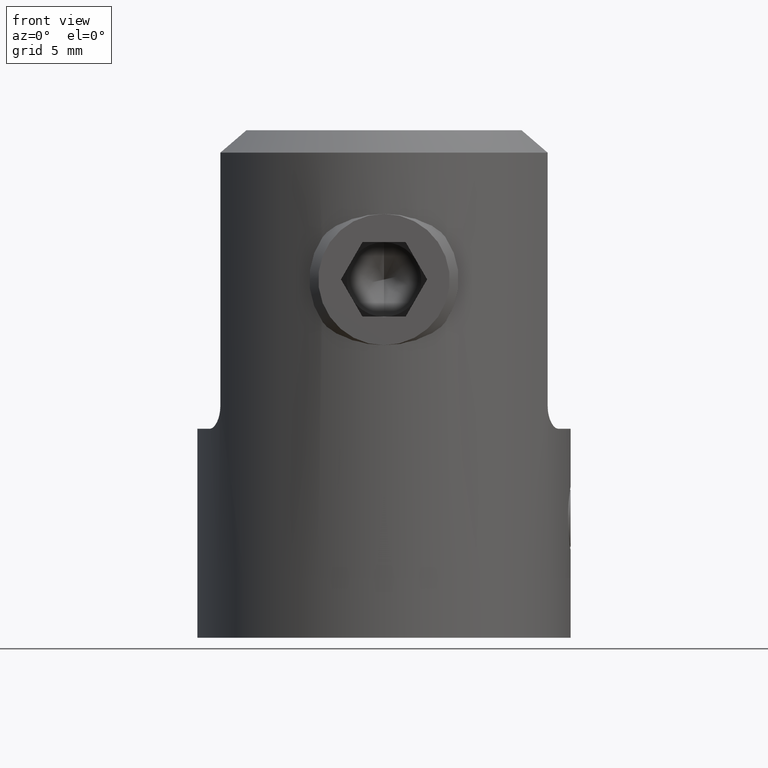
[diagram: clean part render]
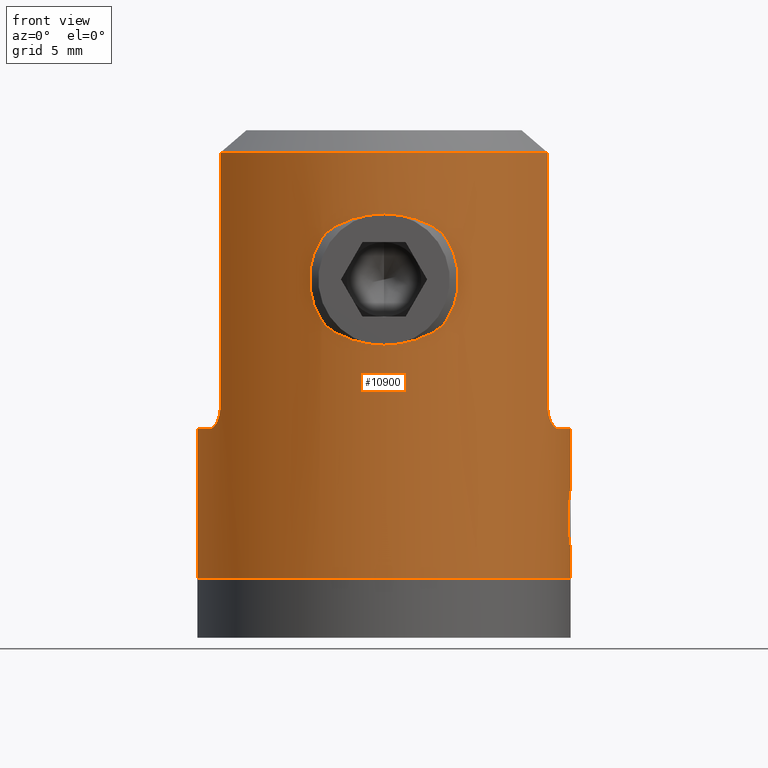
[diagram: same view with one face highlighted and labeled with its STEP entity id]
A machine part, front view. The second image highlights one B-rep face of the part: STEP entity #10900.
In plain terms, the highlighted cylindrical surface (partial cylindrical patch) has radius 12.5 mm, axis along (-0, -0, -1).
Its self-contained STEP definition (entity closure, byte-faithful):
#116 = VECTOR ( 'NONE', #6065, 1000.000000000000000 ) ;
#203 = CARTESIAN_POINT ( 'NONE',  ( 5.207285104027517076E-16, -12.50000000000000000, 9.249999999999998224 ) ) ;
#264 = CARTESIAN_POINT ( 'NONE',  ( -11.23973335227942272, -5.470324858734009865, -4.647975933231345280 ) ) ;
#312 = CARTESIAN_POINT ( 'NONE',  ( 11.01148464564136731, -5.916018815746308057, -4.005039983900222644 ) ) ;
#544 = CARTESIAN_POINT ( 'NONE',  ( -4.031369261545541427, -11.83262075313582429, 6.374420639418072021 ) ) ;
#568 = CARTESIAN_POINT ( 'NONE',  ( -10.96585609973065623, -6.000000000000000000, 13.50000000000000711 ) ) ;
#652 = CARTESIAN_POINT ( 'NONE',  ( -3.816095743233451021, -11.90379205501131565, 6.891661570014089300 ) ) ;
#723 = DIRECTION ( 'NONE',  ( -0.000000000000000000, -0.000000000000000000, -1.000000000000000000 ) ) ;
#753 = CARTESIAN_POINT ( 'NONE',  ( -3.199617096894397328, -12.08524053504126172, 7.810939405825020110 ) ) ;
#889 = CARTESIAN_POINT ( 'NONE',  ( -1.887422795815530419E-16, -12.50000000000000000, 0.7500000000000042188 ) ) ;
#1137 = EDGE_CURVE ( 'NONE', #13182, #12910, #3888, .T. ) ;
#1251 = VERTEX_POINT ( 'NONE', #8369 ) ;
#1287 = CARTESIAN_POINT ( 'NONE',  ( 12.48225234873648937, -0.6779383900031878962, -12.99232023470801067 ) ) ;
#1401 = CARTESIAN_POINT ( 'NONE',  ( 12.35680486868406014, -1.887385030941209463, -10.06900153632270722 ) ) ;
#1509 = CARTESIAN_POINT ( 'NONE',  ( 12.43473698676050887, -1.280796030087372639, -12.66984366962716813 ) ) ;
#1675 = EDGE_LOOP ( 'NONE', ( #22645, #3199 ) ) ;
#1718 = EDGE_CURVE ( 'NONE', #9214, #16808, #8481, .T. ) ;
#1956 = CARTESIAN_POINT ( 'NONE',  ( 2.593793018188462085, -12.23016238823205626, 1.621978904182383552 ) ) ;
#1959 = AXIS2_PLACEMENT_3D ( 'NONE', #19739, #29859, #27114 ) ;
#2063 = CARTESIAN_POINT ( 'NONE',  ( 4.221710727585462841, -11.76565035374856016, 5.563101670676046773 ) ) ;
#2074 = EDGE_CURVE ( 'NONE', #9450, #13132, #27597, .T. ) ;
#2148 = VERTEX_POINT ( 'NONE', #6154 ) ;
#2167 = DIRECTION ( 'NONE',  ( -1.000000000000000000, 0.000000000000000000, 0.000000000000000000 ) ) ;
#2193 = EDGE_CURVE ( 'NONE', #13132, #9450, #25095, .T. ) ;
#2514 = VERTEX_POINT ( 'NONE', #568 ) ;
#2919 = CARTESIAN_POINT ( 'NONE',  ( 10.99481255590329098, -5.946820213528531518, -3.908856176056842546 ) ) ;
#3052 = CARTESIAN_POINT ( 'NONE',  ( -4.222397225305727808, -11.76540531919759047, 4.441068498242849216 ) ) ;
#3199 = ORIENTED_EDGE ( 'NONE', *, *, #2193, .T. ) ;
#3214 = LINE ( 'NONE', #22276, #8788 ) ;
#3217 = ORIENTED_EDGE ( 'NONE', *, *, #17332, .T. ) ;
#3267 = CARTESIAN_POINT ( 'NONE',  ( -4.221973745491570895, -11.76555630917166617, 5.561451184411105864 ) ) ;
#3432 = ORIENTED_EDGE ( 'NONE', *, *, #17656, .T. ) ;
#3597 = ORIENTED_EDGE ( 'NONE', *, *, #21679, .T. ) ;
#3680 = CARTESIAN_POINT ( 'NONE',  ( 12.49766874747620449, -0.2765420468446734281, -8.913752199355624128 ) ) ;
#3691 = CARTESIAN_POINT ( 'NONE',  ( 0.5597348770223994352, -12.49051703213723918, 9.222348669334014204 ) ) ;
#3828 = CARTESIAN_POINT ( 'NONE',  ( -12.50000000000000000, 0.000000000000000000, 15.00000000000000000 ) ) ;
#3888 = LINE ( 'NONE', #27723, #25567 ) ;
#3897 = CARTESIAN_POINT ( 'NONE',  ( 12.39978901785039511, -1.582696428115959009, -9.612848321380432992 ) ) ;
#4000 = CARTESIAN_POINT ( 'NONE',  ( 12.42318353256700547, -1.387157736859883306, -9.417308881639295137 ) ) ;
#4684 = CARTESIAN_POINT ( 'NONE',  ( 3.375247261267659837, -12.03676708846563059, 2.402398663580476157 ) ) ;
#4730 = VERTEX_POINT ( 'NONE', #14885 ) ;
#4793 = CARTESIAN_POINT ( 'NONE',  ( 0.2830131041339414288, -12.50000000000000000, 0.7500000000000038858 ) ) ;
#5125 = CARTESIAN_POINT ( 'NONE',  ( 11.58701421025937783, -4.694078904483859560, -4.999999999999999112 ) ) ;
#5380 = CARTESIAN_POINT ( 'NONE',  ( -1.378330330126585901, -12.42647857813923018, 0.9700878437640333418 ) ) ;
#5394 = CARTESIAN_POINT ( 'NONE',  ( 12.50000000000000000, 1.530808596915920262E-15, -8.900000000000002132 ) ) ;
#5525 = CARTESIAN_POINT ( 'NONE',  ( -10.97173756636302144, -5.989285090790706256, -3.706020171332470969 ) ) ;
#5591 = CARTESIAN_POINT ( 'NONE',  ( -0.5605364982178012712, -12.49047348086351228, 9.222219400599279027 ) ) ;
#5818 = CARTESIAN_POINT ( 'NONE',  ( -2.136877713584982796, -12.31821531856452445, 8.684108825520505448 ) ) ;
#5821 = B_SPLINE_CURVE_WITH_KNOTS ( 'NONE', 3,
 ( #15483, #5125, #20222, #18009, #10314, #15058, #20551, #10210, #28120, #312, #2919, #12974, #15377, #12753 ),
 .UNSPECIFIED., .F., .F.,
 ( 4, 2, 2, 2, 2, 2, 4 ),
 ( 0.000000000000000000, 0.0006151161243087470767, 0.001230232248617494153, 0.001537790310771869210, 0.001845348372926244483, 0.002152906435080619539, 0.002460464497234994812 ),
 .UNSPECIFIED. ) ;
#6026 = CARTESIAN_POINT ( 'NONE',  ( 10.96585609973065800, -5.999999999999998224, -3.499999999999996003 ) ) ;
#6065 = DIRECTION ( 'NONE',  ( -0.000000000000000000, -0.000000000000000000, -1.000000000000000000 ) ) ;
#6154 = CARTESIAN_POINT ( 'NONE',  ( 12.50000000000000000, 1.530808498934191521E-15, -15.00000000000000000 ) ) ;
#6254 = CARTESIAN_POINT ( 'NONE',  ( 12.48229535687992708, -0.6771302859603559599, -9.007412991424079252 ) ) ;
#6301 = VECTOR ( 'NONE', #19880, 1000.000000000000000 ) ;
#6560 = EDGE_LOOP ( 'NONE', ( #14883, #27230, #3217, #24209, #11901, #21255, #15057, #26531, #3597, #3432, #10225, #27732 ) ) ;
#6573 = CARTESIAN_POINT ( 'NONE',  ( 12.32232857426643413, -2.100052025693301072, -10.86355718150324279 ) ) ;
#6933 = CARTESIAN_POINT ( 'NONE',  ( 1.106723622982606958, -12.45391315575747271, 0.8872027703801919074 ) ) ;
#7006 = FACE_BOUND ( 'NONE', #1675, .T. ) ;
#7033 = CIRCLE ( 'NONE', #1959, 12.50000000000000000 ) ;
#7055 = EDGE_CURVE ( 'NONE', #16808, #24830, #24542, .T. ) ;
#7142 = CARTESIAN_POINT ( 'NONE',  ( 1.889779339561150184, -12.35903129587626736, 8.816858704791874501 ) ) ;
#7369 = CARTESIAN_POINT ( 'NONE',  ( 3.398411690951088193, -12.03595731224373466, 7.611797769971548888 ) ) ;
#7757 = CARTESIAN_POINT ( 'NONE',  ( -10.96585609973065623, -6.000000000000000000, -3.499999999999996003 ) ) ;
#7933 = CARTESIAN_POINT ( 'NONE',  ( -3.200971035677666610, -12.08486193691608612, 2.190743650006375720 ) ) ;
#8211 = CYLINDRICAL_SURFACE ( 'NONE', #20521, 12.50000000000000000 ) ;
#8255 = CARTESIAN_POINT ( 'NONE',  ( -0.2830837487765228144, -12.50000000000000355, 0.7500000000000046629 ) ) ;
#8363 = CARTESIAN_POINT ( 'NONE',  ( -2.596074283337399979, -12.22968001677591232, 8.376285313253081455 ) ) ;
#8369 = CARTESIAN_POINT ( 'NONE',  ( 12.50000000000000000, 1.530808498934191521E-15, -4.999999999999997335 ) ) ;
#8481 = B_SPLINE_CURVE_WITH_KNOTS ( 'NONE', 3,
 ( #7757, #15233, #5525, #18164, #30409, #22916, #15334, #264, #10378, #28844, #30858, #31184, #18491, #25989 ),
 .UNSPECIFIED., .F., .F.,
 ( 4, 2, 2, 2, 2, 2, 4 ),
 ( 0.000000000000000000, 0.0003075094413942247996, 0.0006150188827884495993, 0.001230037765576901367, 0.001537547206971126438, 0.001845056648365351291, 0.002460075531153798831 ),
 .UNSPECIFIED. ) ;
#8788 = VECTOR ( 'NONE', #9425, 1000.000000000000000 ) ;
#9020 = CARTESIAN_POINT ( 'NONE',  ( 12.32468933921310317, -2.086330489974699720, -10.72412159197896386 ) ) ;
#9214 = VERTEX_POINT ( 'NONE', #14136 ) ;
#9345 = DIRECTION ( 'NONE',  ( 1.000000000000000000, 0.000000000000000000, 0.000000000000000000 ) ) ;
#9425 = DIRECTION ( 'NONE',  ( -0.000000000000000000, -0.000000000000000000, -1.000000000000000000 ) ) ;
#9450 = VERTEX_POINT ( 'NONE', #889 ) ;
#9550 = CARTESIAN_POINT ( 'NONE',  ( 12.50000000000000000, 1.530808498934191521E-15, 15.00000000000000000 ) ) ;
#10165 = CIRCLE ( 'NONE', #17842, 12.50000000000000000 ) ;
#10210 = CARTESIAN_POINT ( 'NONE',  ( 11.08050474110093297, -5.785881309646044635, -4.278563079836198213 ) ) ;
#10225 = ORIENTED_EDGE ( 'NONE', *, *, #31388, .F. ) ;
#10314 = CARTESIAN_POINT ( 'NONE',  ( 11.27476220471208990, -5.399469201287617537, -4.716102953908867690 ) ) ;
#10378 = CARTESIAN_POINT ( 'NONE',  ( -11.27682585951398231, -5.393616224303183770, -4.708558559768877494 ) ) ;
#10554 = CARTESIAN_POINT ( 'NONE',  ( -2.808494909976503973, -12.18207472876354380, 8.201762991009006853 ) ) ;
#10634 = EDGE_CURVE ( 'NONE', #12910, #2514, #7033, .T. ) ;
#10736 = CARTESIAN_POINT ( 'NONE',  ( 0.000000000000000000, 0.000000000000000000, -4.999999999999997335 ) ) ;
#10775 = CARTESIAN_POINT ( 'NONE',  ( -1.887422795815530419E-16, -12.50000000000000000, 0.7500000000000042188 ) ) ;
#10900 = ADVANCED_FACE ( 'NONE', ( #18403, #7006 ), #8211, .T. ) ;
#11206 = CARTESIAN_POINT ( 'NONE',  ( 12.48878923632492111, -0.5462078688293388051, -8.967621503411464801 ) ) ;
#11217 = CARTESIAN_POINT ( 'NONE',  ( 5.207285104027517076E-16, -12.50000000000000000, 9.249999999999998224 ) ) ;
#11422 = CARTESIAN_POINT ( 'NONE',  ( 12.48886249823464745, -0.5444173614143064110, -13.03282630261578667 ) ) ;
#11528 = CARTESIAN_POINT ( 'NONE',  ( 12.45599735624381665, -1.054112223713820740, -9.178589918335488207 ) ) ;
#11882 = CARTESIAN_POINT ( 'NONE',  ( 4.112665512655786060, -11.80421006736385969, 3.892299831934840526 ) ) ;
#11901 = ORIENTED_EDGE ( 'NONE', *, *, #10634, .T. ) ;
#12206 = CARTESIAN_POINT ( 'NONE',  ( 2.810810378641917850, -12.18152699822223717, 1.800356513243473788 ) ) ;
#12735 = DIRECTION ( 'NONE',  ( -0.000000000000000000, -0.000000000000000000, -1.000000000000000000 ) ) ;
#12753 = CARTESIAN_POINT ( 'NONE',  ( 10.96585609973065800, -5.999999999999998224, -3.499999999999996003 ) ) ;
#12910 = VERTEX_POINT ( 'NONE', #26724 ) ;
#12974 = CARTESIAN_POINT ( 'NONE',  ( 10.97193991948220138, -5.988915443947516515, -3.708765188068190000 ) ) ;
#13132 = VERTEX_POINT ( 'NONE', #203 ) ;
#13182 = VERTEX_POINT ( 'NONE', #6026 ) ;
#13326 = CARTESIAN_POINT ( 'NONE',  ( -4.112439659885906096, -11.80428908054483017, 3.891450138368368172 ) ) ;
#13750 = CARTESIAN_POINT ( 'NONE',  ( 12.33211929933789719, -2.044525624529536678, -11.55200599510587445 ) ) ;
#13890 = DIRECTION ( 'NONE',  ( -0.000000000000000000, -0.000000000000000000, 1.000000000000000000 ) ) ;
#14078 = CARTESIAN_POINT ( 'NONE',  ( 12.50000000000000178, -0.1390172217368306484, -13.10000000000000142 ) ) ;
#14136 = CARTESIAN_POINT ( 'NONE',  ( -10.96585609973065623, -6.000000000000000000, -3.499999999999996003 ) ) ;
#14175 = AXIS2_PLACEMENT_3D ( 'NONE', #10736, #723, #15460 ) ;
#14420 = CARTESIAN_POINT ( 'NONE',  ( 3.684943520733715783, -11.94559530813206472, 2.864345995563434499 ) ) ;
#14626 = CARTESIAN_POINT ( 'NONE',  ( 4.029947479452941295, -11.83309392025664053, 3.622025157733308465 ) ) ;
#14847 = CARTESIAN_POINT ( 'NONE',  ( 2.596988921468601053, -12.22948091441702800, 8.375561587881106718 ) ) ;
#14883 = ORIENTED_EDGE ( 'NONE', *, *, #22263, .F. ) ;
#14885 = CARTESIAN_POINT ( 'NONE',  ( -12.50000000000000000, 0.000000000000000000, -15.00000000000000000 ) ) ;
#15057 = ORIENTED_EDGE ( 'NONE', *, *, #1718, .T. ) ;
#15058 = CARTESIAN_POINT ( 'NONE',  ( 11.17064239995578490, -5.610069605577518992, -4.513525175028263448 ) ) ;
#15233 = CARTESIAN_POINT ( 'NONE',  ( -10.96585609973065623, -6.000000000000000888, -3.604089402007262688 ) ) ;
#15334 = CARTESIAN_POINT ( 'NONE',  ( -11.13622824818951429, -5.679670762106630022, -4.446516345370229217 ) ) ;
#15377 = CARTESIAN_POINT ( 'NONE',  ( 10.96585609973065445, -6.000000000000000000, -3.604328670593471173 ) ) ;
#15460 = DIRECTION ( 'NONE',  ( 1.000000000000000000, 3.552713678800500929E-15, 0.000000000000000000 ) ) ;
#15483 = CARTESIAN_POINT ( 'NONE',  ( 11.66190378969060149, -4.500000000000000888, -4.999999999999997335 ) ) ;
#15571 = CIRCLE ( 'NONE', #19874, 12.50000000000000000 ) ;
#15615 = CARTESIAN_POINT ( 'NONE',  ( -3.684277890535777811, -11.94578133614016124, 7.136497493859844887 ) ) ;
#15826 = CARTESIAN_POINT ( 'NONE',  ( -4.029702645458757893, -11.83317490101704550, 3.621435273870646121 ) ) ;
#16250 = CARTESIAN_POINT ( 'NONE',  ( 12.50000000000000000, -0.1371844661457296832, -8.900000000000002132 ) ) ;
#16467 = CARTESIAN_POINT ( 'NONE',  ( 12.46584558724483394, -0.9321576868460976772, -12.88680216904710285 ) ) ;
#16683 = CARTESIAN_POINT ( 'NONE',  ( 12.38820982123449888, -1.669773426702777730, -9.719165335797715244 ) ) ;
#16797 = CARTESIAN_POINT ( 'NONE',  ( 0.000000000000000000, 0.000000000000000000, -4.999999999999997335 ) ) ;
#16808 = VERTEX_POINT ( 'NONE', #19050 ) ;
#17332 = EDGE_CURVE ( 'NONE', #20619, #13182, #5821, .T. ) ;
#17354 = CARTESIAN_POINT ( 'NONE',  ( 1.891760164608733419, -12.35874089043786839, 1.184072771329882645 ) ) ;
#17656 = EDGE_CURVE ( 'NONE', #4730, #2148, #15571, .T. ) ;
#17842 = AXIS2_PLACEMENT_3D ( 'NONE', #16797, #19426, #9345 ) ;
#18009 = CARTESIAN_POINT ( 'NONE',  ( 11.35153951942210426, -5.237407659473080734, -4.820238489391681647 ) ) ;
#18124 = CARTESIAN_POINT ( 'NONE',  ( -2.812211592023617257, -12.18119737822430082, 1.801624979319209841 ) ) ;
#18164 = CARTESIAN_POINT ( 'NONE',  ( -10.99435860339805515, -5.947658364751337245, -3.905832048528476097 ) ) ;
#18348 = CARTESIAN_POINT ( 'NONE',  ( -1.888204378323606880, -12.35925933702424118, 8.817588875153733241 ) ) ;
#18403 = FACE_OUTER_BOUND ( 'NONE', #6560, .T. ) ;
#18491 = CARTESIAN_POINT ( 'NONE',  ( -11.58712850848544562, -4.693782696724811743, -4.999999999999998224 ) ) ;
#18787 = CARTESIAN_POINT ( 'NONE',  ( 0.2787818760532497220, -12.50000000000000000, 9.250000000000000000 ) ) ;
#18989 = CARTESIAN_POINT ( 'NONE',  ( 12.36678065982763108, -1.821708534087456144, -9.946406743388207516 ) ) ;
#19050 = CARTESIAN_POINT ( 'NONE',  ( -11.66190378969060149, -4.500000000000000888, -4.999999999999997335 ) ) ;
#19243 = CARTESIAN_POINT ( 'NONE',  ( -10.96585609973065623, -6.000000000000000000, -42.73084924772409465 ) ) ;
#19259 = LINE ( 'NONE', #9550, #6301 ) ;
#19426 = DIRECTION ( 'NONE',  ( -0.000000000000000000, -0.000000000000000000, -1.000000000000000000 ) ) ;
#19739 = CARTESIAN_POINT ( 'NONE',  ( 0.000000000000000000, 0.000000000000000000, 13.50000000000000711 ) ) ;
#19874 = AXIS2_PLACEMENT_3D ( 'NONE', #22396, #24824, #20184 ) ;
#19880 = DIRECTION ( 'NONE',  ( -0.000000000000000000, -0.000000000000000000, -1.000000000000000000 ) ) ;
#20184 = DIRECTION ( 'NONE',  ( 1.000000000000000000, 0.000000000000000000, 0.000000000000000000 ) ) ;
#20222 = CARTESIAN_POINT ( 'NONE',  ( 11.50910958810004381, -4.881422430154224834, -4.963323838012638767 ) ) ;
#20460 = CARTESIAN_POINT ( 'NONE',  ( -0.5610328502745796087, -12.49040236568682971, 0.7779974687900530483 ) ) ;
#20521 = AXIS2_PLACEMENT_3D ( 'NONE', #27569, #12735, #2167 ) ;
#20548 = CARTESIAN_POINT ( 'NONE',  ( 11.66190378969060149, -4.500000000000000888, -4.999999999999997335 ) ) ;
#20551 = CARTESIAN_POINT ( 'NONE',  ( 11.13854122013244741, -5.673350626770930383, -4.439627329550028811 ) ) ;
#20619 = VERTEX_POINT ( 'NONE', #20548 ) ;
#20796 = CARTESIAN_POINT ( 'NONE',  ( -1.111130932166489726, -12.45357446653657441, 9.111778919666528864 ) ) ;
#20903 = CARTESIAN_POINT ( 'NONE',  ( -3.817127236152718428, -11.90344787496035472, 3.110956914740556023 ) ) ;
#21255 = ORIENTED_EDGE ( 'NONE', *, *, #32347, .F. ) ;
#21328 = CARTESIAN_POINT ( 'NONE',  ( 12.45612162279729773, -1.052690134217554307, -12.82226777203640289 ) ) ;
#21337 = CARTESIAN_POINT ( 'NONE',  ( 1.111017029286507363, -12.45359225377565870, 9.111833238181887396 ) ) ;
#21451 = CARTESIAN_POINT ( 'NONE',  ( 1.376834995125562733, -12.42663453718981970, 9.030384810508207849 ) ) ;
#21550 = CARTESIAN_POINT ( 'NONE',  ( 12.43467607152728149, -1.281348397245134496, -9.330618812059585210 ) ) ;
#21679 = EDGE_CURVE ( 'NONE', #24830, #4730, #30043, .T. ) ;
#22104 = CARTESIAN_POINT ( 'NONE',  ( -1.887422795815530419E-16, -12.50000000000000000, 0.7500000000000042188 ) ) ;
#22213 = CARTESIAN_POINT ( 'NONE',  ( 2.809736531028914186, -12.18179987674392528, 8.200769911959799430 ) ) ;
#22263 = EDGE_CURVE ( 'NONE', #1251, #27669, #3214, .T. ) ;
#22276 = CARTESIAN_POINT ( 'NONE',  ( 12.50000000000000000, 1.530808498934191521E-15, 15.00000000000000000 ) ) ;
#22396 = CARTESIAN_POINT ( 'NONE',  ( 0.000000000000000000, 0.000000000000000000, -15.00000000000000000 ) ) ;
#22424 = CARTESIAN_POINT ( 'NONE',  ( 4.112253069215840107, -11.80435277382028225, 6.108737865166160574 ) ) ;
#22645 = ORIENTED_EDGE ( 'NONE', *, *, #2074, .T. ) ;
#22916 = CARTESIAN_POINT ( 'NONE',  ( -11.07533964970953200, -5.796125840938207929, -4.281360748136418870 ) ) ;
#22984 = CARTESIAN_POINT ( 'NONE',  ( -4.112389195474695391, -11.80430568381098233, 6.108397421974512298 ) ) ;
#23424 = CARTESIAN_POINT ( 'NONE',  ( -0.2788514645129495095, -12.50000000000000355, 9.250000000000001776 ) ) ;
#24027 = VERTEX_POINT ( 'NONE', #30475 ) ;
#24174 = CARTESIAN_POINT ( 'NONE',  ( 12.46591754872634539, -0.9311833701841342181, -9.112725260593254717 ) ) ;
#24209 = ORIENTED_EDGE ( 'NONE', *, *, #1137, .T. ) ;
#24214 = CARTESIAN_POINT ( 'NONE',  ( -12.50000000000000000, 0.000000000000000000, -4.999999999999997335 ) ) ;
#24286 = CARTESIAN_POINT ( 'NONE',  ( 12.50000000000000000, 1.530808596915920262E-15, -8.900000000000002132 ) ) ;
#24524 = CARTESIAN_POINT ( 'NONE',  ( 0.5609864988397508245, -12.49039968203324591, 0.7780061134867055639 ) ) ;
#24542 = CIRCLE ( 'NONE', #14175, 12.50000000000000000 ) ;
#24824 = DIRECTION ( 'NONE',  ( 0.000000000000000000, 0.000000000000000000, 1.000000000000000000 ) ) ;
#24830 = VERTEX_POINT ( 'NONE', #24214 ) ;
#24857 = CARTESIAN_POINT ( 'NONE',  ( 3.816891194918242469, -11.90352594901692562, 3.110388145881642252 ) ) ;
#24965 = CARTESIAN_POINT ( 'NONE',  ( 2.138305421893499592, -12.31796268938259864, 8.683261790113473211 ) ) ;
#25095 = B_SPLINE_CURVE_WITH_KNOTS ( 'NONE', 3,
 ( #11217, #18787, #3691, #21337, #21451, #7142, #24965, #14847, #22213, #7369, #29901, #29476, #22424, #2063, #32247, #26946, #32137, #11882, #14626, #24857, #14420, #4684, #29578, #12206, #1956, #27371, #17354, #32030, #6933, #24524, #4793, #22104 ),
 .UNSPECIFIED., .F., .F.,
 ( 4, 2, 2, 2, 2, 2, 2, 2, 2, 2, 2, 2, 2, 2, 2, 4 ),
 ( 0.01338802181216818162, 0.01422456436089503638, 0.01506110690962189115, 0.01589764945834874765, 0.01673419200707560242, 0.01840727710452931196, 0.01924381965325616672, 0.02008036220198302496, 0.02091690475070987973, 0.02175344729943673450, 0.02258998984816358926, 0.02342653239689044403, 0.02426307494561729880, 0.02509961749434415357, 0.02593616004307101180, 0.02677270259179786310 ),
 .UNSPECIFIED. ) ;
#25567 = VECTOR ( 'NONE', #27407, 1000.000000000000000 ) ;
#25621 = CARTESIAN_POINT ( 'NONE',  ( -3.377337166111912925, -12.03616172091271608, 7.594632687368159552 ) ) ;
#25732 = CARTESIAN_POINT ( 'NONE',  ( -4.250140563685209649, -11.75526712633238091, 5.277443267795707271 ) ) ;
#25846 = CARTESIAN_POINT ( 'NONE',  ( -2.596016134863805558, -12.22970458677398398, 1.623610813501223715 ) ) ;
#25948 = CARTESIAN_POINT ( 'NONE',  ( 5.207285104027517076E-16, -12.50000000000000000, 9.249999999999998224 ) ) ;
#25989 = CARTESIAN_POINT ( 'NONE',  ( -11.66190378969060149, -4.500000000000000888, -4.999999999999997335 ) ) ;
#26330 = VECTOR ( 'NONE', #13890, 1000.000000000000000 ) ;
#26363 = CARTESIAN_POINT ( 'NONE',  ( 12.42301355294200249, -1.388600539506599230, -12.58129182168066507 ) ) ;
#26478 = CARTESIAN_POINT ( 'NONE',  ( 12.38831158150507683, -1.678584206747425256, -12.29117628362159742 ) ) ;
#26531 = ORIENTED_EDGE ( 'NONE', *, *, #7055, .T. ) ;
#26692 = CARTESIAN_POINT ( 'NONE',  ( 12.33366651879309295, -2.032587617967189342, -10.45459062650449233 ) ) ;
#26724 = CARTESIAN_POINT ( 'NONE',  ( 10.96585609973065800, -5.999999999999998224, 13.50000000000000711 ) ) ;
#26946 = CARTESIAN_POINT ( 'NONE',  ( 4.249954229474658618, -11.75533449331551239, 4.719255932716558632 ) ) ;
#27114 = DIRECTION ( 'NONE',  ( 1.000000000000000000, 0.000000000000000000, 0.000000000000000000 ) ) ;
#27132 = LINE ( 'NONE', #19243, #26330 ) ;
#27230 = ORIENTED_EDGE ( 'NONE', *, *, #28300, .T. ) ;
#27371 = CARTESIAN_POINT ( 'NONE',  ( 2.134751652077508499, -12.31858229049437270, 1.314674488061547519 ) ) ;
#27407 = DIRECTION ( 'NONE',  ( -0.000000000000000000, -0.000000000000000000, 1.000000000000000000 ) ) ;
#27569 = CARTESIAN_POINT ( 'NONE',  ( 0.000000000000000000, 0.000000000000000000, 15.00000000000000000 ) ) ;
#27597 = B_SPLINE_CURVE_WITH_KNOTS ( 'NONE', 3,
 ( #10775, #8255, #20460, #28028, #5380, #30696, #30810, #25846, #18124, #7933, #30478, #28360, #20903, #15826, #13326, #3052, #30927, #25732, #3267, #22984, #544, #652, #15615, #25621, #753, #10554, #8363, #5818, #18348, #28143, #20796, #5591, #23424, #25948 ),
 .UNSPECIFIED., .F., .F.,
 ( 4, 2, 2, 2, 2, 2, 2, 2, 2, 2, 2, 2, 2, 2, 2, 2, 4 ),
 ( 2.005575075705830442E-19, 0.0008367513632605123267, 0.001673502726521024437, 0.002510254089781536330, 0.003347005453042048440, 0.004183756816302559682, 0.005020508179563070925, 0.005857259542823582167, 0.006694010906084092542, 0.007530762269344602050, 0.008367513632605114160, 0.009204264995865622800, 0.01004101635912613491, 0.01087776772238664529, 0.01171451908564715913, 0.01255127044890766951, 0.01338802181216818162 ),
 .UNSPECIFIED. ) ;
#27669 = VERTEX_POINT ( 'NONE', #5394 ) ;
#27723 = CARTESIAN_POINT ( 'NONE',  ( 10.96585609973065800, -5.999999999999998224, -42.73084924772409465 ) ) ;
#27732 = ORIENTED_EDGE ( 'NONE', *, *, #28213, .T. ) ;
#28028 = CARTESIAN_POINT ( 'NONE',  ( -1.107203369737982834, -12.45387529301153862, 0.8873166994441118449 ) ) ;
#28120 = CARTESIAN_POINT ( 'NONE',  ( 11.05428633293599638, -5.835651326023887364, -4.190079855651604568 ) ) ;
#28143 = CARTESIAN_POINT ( 'NONE',  ( -1.376457197054919535, -12.42666378071028710, 9.030467240741904433 ) ) ;
#28213 = EDGE_CURVE ( 'NONE', #24027, #27669, #30642, .T. ) ;
#28300 = EDGE_CURVE ( 'NONE', #1251, #20619, #10165, .T. ) ;
#28360 = CARTESIAN_POINT ( 'NONE',  ( -3.686687847417889241, -11.94506348467616341, 2.867223496547752326 ) ) ;
#28844 = CARTESIAN_POINT ( 'NONE',  ( -11.35237288859118188, -5.232736114046804943, -4.812349624109404367 ) ) ;
#28900 = CARTESIAN_POINT ( 'NONE',  ( 12.34023651949286204, -1.992840048957694288, -10.32356158176761518 ) ) ;
#29111 = CARTESIAN_POINT ( 'NONE',  ( 12.36503985059749589, -1.834949845526015366, -12.05723919355780538 ) ) ;
#29476 = CARTESIAN_POINT ( 'NONE',  ( 4.031416330468093889, -11.83260171973144104, 6.374153366441774438 ) ) ;
#29578 = CARTESIAN_POINT ( 'NONE',  ( 3.200311093862831413, -12.08504298277821576, 2.189949763879111444 ) ) ;
#29859 = DIRECTION ( 'NONE',  ( 0.000000000000000000, 0.000000000000000000, -1.000000000000000000 ) ) ;
#29901 = CARTESIAN_POINT ( 'NONE',  ( 3.709401366446403614, -11.93907307340191259, 7.148325375467589282 ) ) ;
#30043 = LINE ( 'NONE', #3828, #116 ) ;
#30409 = CARTESIAN_POINT ( 'NONE',  ( -11.01139659345097144, -5.916181271888256710, -4.004526816652972165 ) ) ;
#30475 = CARTESIAN_POINT ( 'NONE',  ( 12.50000000000000000, -5.520109406093562953E-16, -13.09999999999999787 ) ) ;
#30478 = CARTESIAN_POINT ( 'NONE',  ( -3.376094007862942892, -12.03653597125495978, 2.403388333221797346 ) ) ;
#30642 = B_SPLINE_CURVE_WITH_KNOTS ( 'NONE', 3,
 ( #31686, #14078, #31571, #11422, #1287, #16467, #21328, #1509, #26363, #26478, #29111, #13750, #31352, #6573, #9020, #26692, #28900, #1401, #18989, #16683, #3897, #4000, #21550, #11528, #24174, #6254, #11206, #3680, #16250, #24286 ),
 .UNSPECIFIED., .F., .F.,
 ( 4, 2, 2, 2, 2, 2, 2, 2, 2, 2, 2, 2, 2, 2, 4 ),
 ( 5.363071237915611744E-19, 0.0004110766416146435960, 0.0008221532832292866499, 0.001233229924843929487, 0.001644306566458572649, 0.002466459849687862010, 0.003288613132917151370, 0.003699689774531798436, 0.004110766416146446368, 0.004521843057761093000, 0.004932919699375740499, 0.005343996340990387998, 0.005755072982605035498, 0.006166149624219682997, 0.006577226265834330496 ),
 .UNSPECIFIED. ) ;
#30696 = CARTESIAN_POINT ( 'NONE',  ( -1.892197589742822261, -12.35867115159520147, 1.184298915363424909 ) ) ;
#30810 = CARTESIAN_POINT ( 'NONE',  ( -2.135560474538037212, -12.31845588991675022, 1.315073247570590409 ) ) ;
#30858 = CARTESIAN_POINT ( 'NONE',  ( -11.39096709544499397, -5.148322142737680629, -4.856010356319217180 ) ) ;
#30927 = CARTESIAN_POINT ( 'NONE',  ( -4.249858353795461063, -11.75536915605750110, 4.718266880536701180 ) ) ;
#31184 = CARTESIAN_POINT ( 'NONE',  ( -11.50840564680458833, -4.883032714231081428, -4.962746966725219977 ) ) ;
#31352 = CARTESIAN_POINT ( 'NONE',  ( 12.32235525086056960, -2.099895493303239657, -11.27528082126491604 ) ) ;
#31388 = EDGE_CURVE ( 'NONE', #24027, #2148, #19259, .T. ) ;
#31571 = CARTESIAN_POINT ( 'NONE',  ( 12.49768326621186532, -0.2756623671610650694, -13.08633249971020973 ) ) ;
#31686 = CARTESIAN_POINT ( 'NONE',  ( 12.50000000000000000, -5.520109406093562953E-16, -13.09999999999999787 ) ) ;
#32030 = CARTESIAN_POINT ( 'NONE',  ( 1.377627557923825297, -12.42655926751368511, 0.9698387815677518287 ) ) ;
#32137 = CARTESIAN_POINT ( 'NONE',  ( 4.222497662025621601, -11.76536894566552682, 4.441850579586394510 ) ) ;
#32247 = CARTESIAN_POINT ( 'NONE',  ( 4.250045657281807721, -11.75530143864388499, 5.279356573154140087 ) ) ;
#32347 = EDGE_CURVE ( 'NONE', #9214, #2514, #27132, .T. ) ;